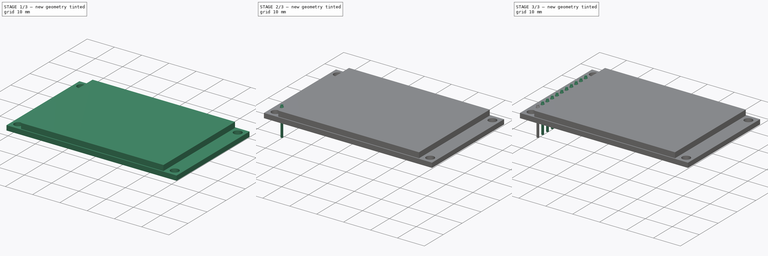
[diagram: build sequence overview — one tinted view per stage of 3, left to right]
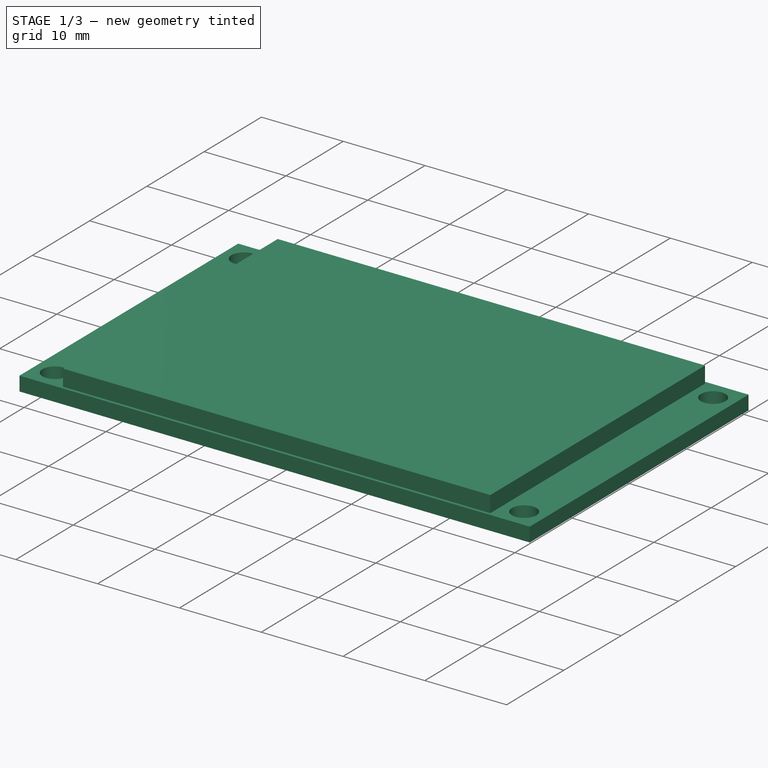
[diagram: stage 1 of 3 — iso view after this stage's code; geometry added in this stage tinted green]
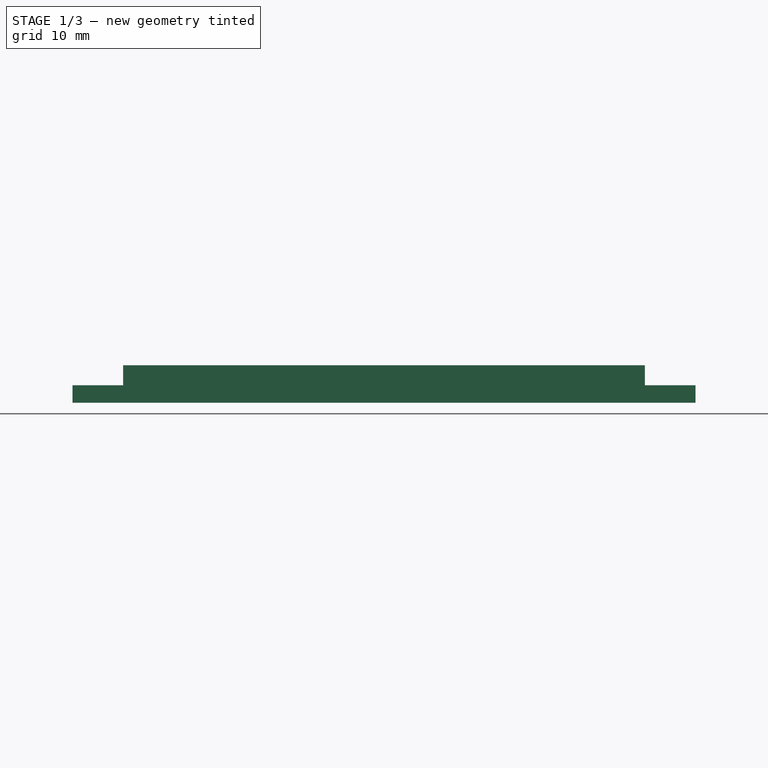
[diagram: stage 1 of 3 — front view after this stage's code; geometry added in this stage tinted green]
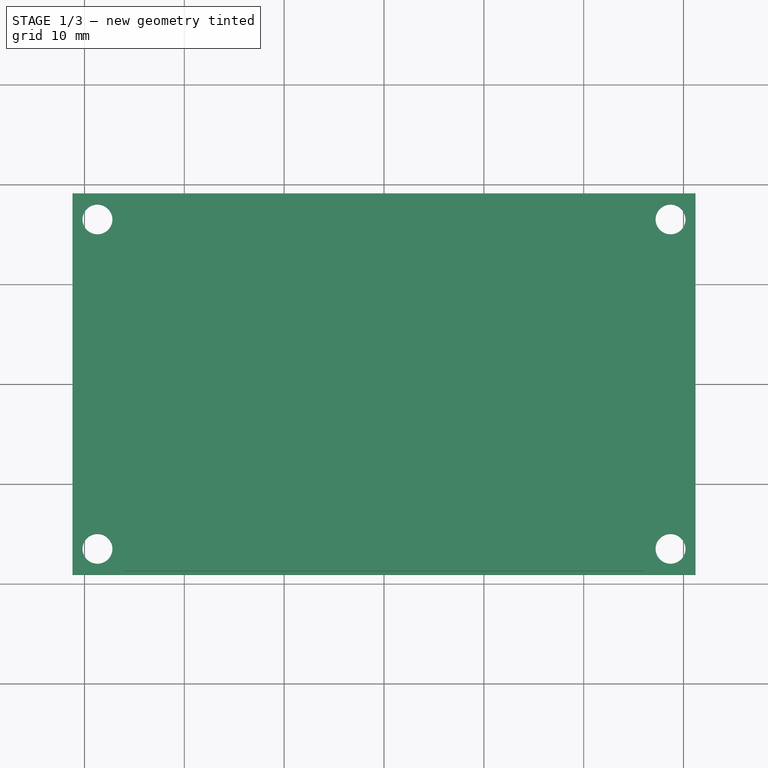
[diagram: stage 1 of 3 — top view after this stage's code; geometry added in this stage tinted green]
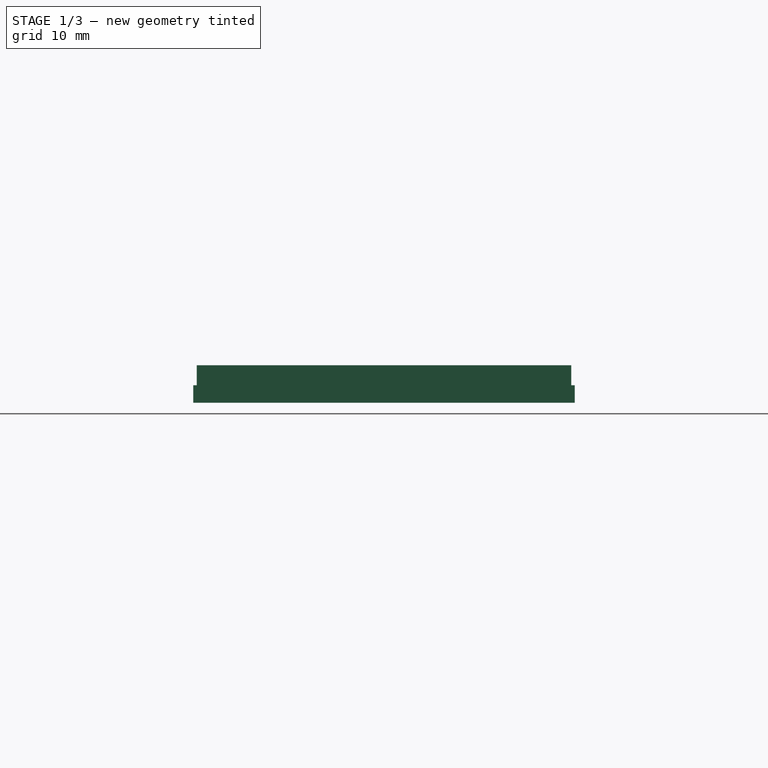
[diagram: stage 1 of 3 — right view after this stage's code; geometry added in this stage tinted green]
FCSTD DOCUMENT  (FreeCAD 1.0R39109 (Git))
Label: screen_il9225
License: All rights reserved
LicenseURL: http://en.wikipedia.org/wiki/All_rights_reserved
objects: Sketcher::SketchObject×6, PartDesign::Pad×4, PartDesign::Line×1, PartDesign::Plane×1, PartDesign::Revolution×1, PartDesign::LinearPattern×1, PartDesign::Body×1
note: 32 computed .brp shape members not serialized (recipe doc carries the construction recipe); baked Part::Feature solids carry a one-line shape summary decoded from their .brp

FEATURE [Sketcher::SketchObject] Sketch
  ArcFitTolerance = 1e-06
  AttachmentSupport = -> [XY_Plane]
  FullyConstrained = true
  MakeInternals = false
  MapMode = 5
  sketch-geometry (9):
    g0: LineSegment StartX=-31.2 StartY=19.1 StartZ=0 EndX=-31.2 EndY=-19.1 EndZ=0
    g1: LineSegment StartX=-31.2 StartY=-19.1 StartZ=0 EndX=31.2 EndY=-19.1 EndZ=0
    g2: LineSegment StartX=31.2 StartY=-19.1 StartZ=0 EndX=31.2 EndY=19.1 EndZ=0
    g3: LineSegment StartX=31.2 StartY=19.1 StartZ=0 EndX=-31.2 EndY=19.1 EndZ=0
    g4: GeomPoint [constr] X=0 Y=0 Z=0
    g5: Circle CenterX=-28.7 CenterY=16.5 CenterZ=0 NormalX=0 NormalY=0 NormalZ=1 AngleXU=0 Radius=1.5
    g6: Circle CenterX=-28.7 CenterY=-16.5 CenterZ=0 NormalX=0 NormalY=0 NormalZ=1 AngleXU=0 Radius=1.5
    g7: Circle CenterX=28.7 CenterY=-16.5 CenterZ=0 NormalX=0 NormalY=0 NormalZ=1 AngleXU=0 Radius=1.5
    g8: Circle CenterX=28.7 CenterY=16.5 CenterZ=0 NormalX=0 NormalY=0 NormalZ=1 AngleXU=0 Radius=1.5
  constraints (22):
    c: Coincident(g0,g1)
    c: Coincident(g1,g2)
    c: Coincident(g2,g3)
    c: Coincident(g3,g0)
    c: Vertical(g0)
    c: Vertical(g2)
    c: Horizontal(g1)
    c: Horizontal(g3)
    c: Symmetric(g2,g0,g4)
    c: Coincident(g4,g-1)
    c: DistanceX(g3,g3) = 62.4
    c: DistanceY(g2,g2) = 38.2
    c: Vertical(g6,g5)
    c: Horizontal(g8,g5)
    c: Equal(g5,g8)
    c: Equal(g8,g6)
    c: Equal(g6,g7)
    c: Radius(g7) = 1.5
    c: DistanceY(g7,g8) = 33
    c: Symmetric(g8,g7,g-1)
    c: Symmetric(g7,g6,g-2)
    c: DistanceX(g6,g7) = 57.4
FEATURE [PartDesign::Pad] Pad  label="PCBPad"
  Direction = (0,0,1)
  Length = 1.75
  Length2 = 10
  Profile = -> Sketch
  ReferenceAxis = -> Sketch [N_Axis]
  Refine = true
  Suppressed = false
  Type = 0
FEATURE [Sketcher::SketchObject] Sketch001
  ArcFitTolerance = 1e-06
  AttachmentSupport = -> [Pad]
  FullyConstrained = true
  MakeInternals = false
  MapMode = 5
  Placement = pos=(0,0,1.75) rot=(0,0,1;0rad)
  sketch-geometry (5):
    g0: LineSegment StartX=-26.125 StartY=18.75 StartZ=0 EndX=-26.125 EndY=-18.75 EndZ=0
    g1: LineSegment StartX=-26.125 StartY=-18.75 StartZ=0 EndX=26.125 EndY=-18.75 EndZ=0
    g2: LineSegment StartX=26.125 StartY=-18.75 StartZ=0 EndX=26.125 EndY=18.75 EndZ=0
    g3: LineSegment StartX=26.125 StartY=18.75 StartZ=0 EndX=-26.125 EndY=18.75 EndZ=0
    g4: GeomPoint [constr] X=0 Y=0 Z=0
  constraints (12):
    c: Coincident(g0,g1)
    c: Coincident(g1,g2)
    c: Coincident(g2,g3)
    c: Coincident(g3,g0)
    c: Vertical(g0)
    c: Vertical(g2)
    c: Horizontal(g1)
    c: Horizontal(g3)
    c: Symmetric(g2,g0,g4)
    c: Coincident(g4,g-1)
    c: DistanceX(g3,g3) = 52.25
    c: DistanceY(g2,g2) = 37.5
FEATURE [PartDesign::Pad] Pad001  label="ScreenPad"
  BaseFeature = -> Pad
  Direction = (0,0,1)
  Length = 2
  Length2 = 10
  Profile = -> Sketch001
  ReferenceAxis = -> Sketch001 [N_Axis]
  Refine = true
  Suppressed = false
  Type = 0
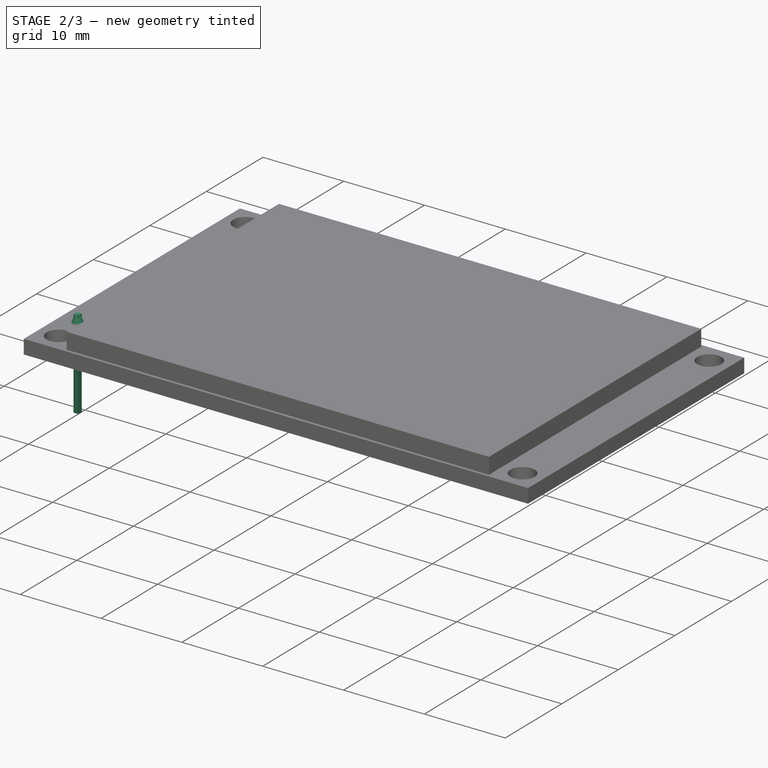
[diagram: stage 2 of 3 — iso view after this stage's code; geometry added in this stage tinted green]
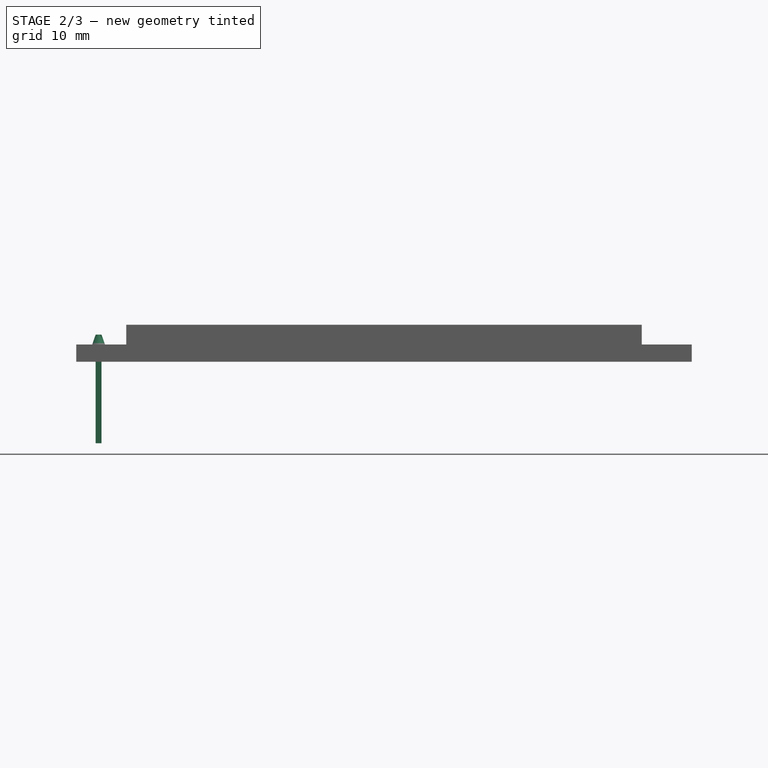
[diagram: stage 2 of 3 — front view after this stage's code; geometry added in this stage tinted green]
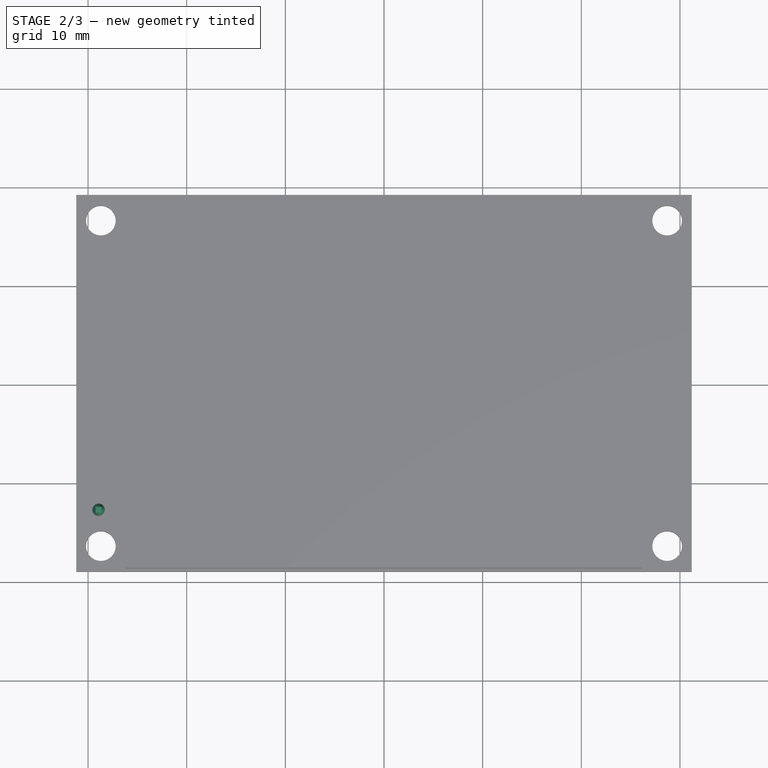
[diagram: stage 2 of 3 — top view after this stage's code; geometry added in this stage tinted green]
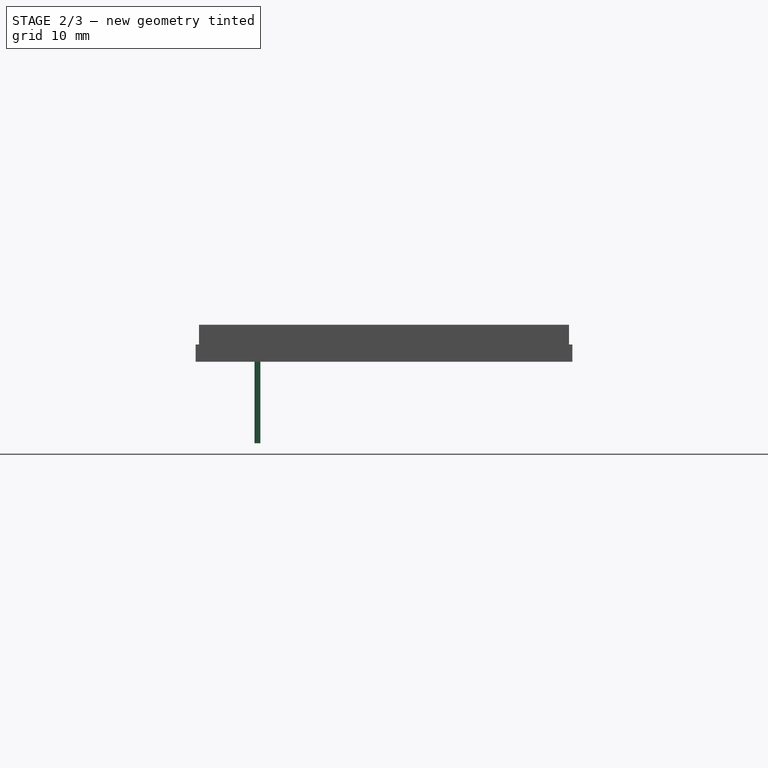
[diagram: stage 2 of 3 — right view after this stage's code; geometry added in this stage tinted green]
FEATURE [Sketcher::SketchObject] Sketch002
  ArcFitTolerance = 1e-06
  AttachmentSupport = -> [Pad001]
  ExternalGeometry = -> [Pad001]
  FullyConstrained = true
  MakeInternals = false
  MapMode = 5
  Placement = pos=(0,0,1.75) rot=(0,0,1;0rad)
  sketch-geometry (10):
    g0: LineSegment [constr] StartX=-30.2 StartY=-11.56 StartZ=0 EndX=-30.2 EndY=-14.1 EndZ=0
    g1: LineSegment [constr] StartX=-30.2 StartY=-14.1 StartZ=0 EndX=-27.66 EndY=-14.1 EndZ=0
    g2: LineSegment [constr] StartX=-27.66 StartY=-14.1 StartZ=0 EndX=-27.66 EndY=-11.56 EndZ=0
    g3: LineSegment [constr] StartX=-27.66 StartY=-11.56 StartZ=0 EndX=-30.2 EndY=-11.56 EndZ=0
    g4: GeomPoint [constr] X=-28.93 Y=-12.83 Z=0
    g5: LineSegment StartX=-29.23 StartY=-12.53 StartZ=0 EndX=-29.23 EndY=-13.13 EndZ=0
    g6: LineSegment StartX=-29.23 StartY=-13.13 StartZ=0 EndX=-28.63 EndY=-13.13 EndZ=0
    g7: LineSegment StartX=-28.63 StartY=-13.13 StartZ=0 EndX=-28.63 EndY=-12.53 EndZ=0
    g8: LineSegment StartX=-28.63 StartY=-12.53 StartZ=0 EndX=-29.23 EndY=-12.53 EndZ=0
    g9: GeomPoint [constr] X=-28.93 Y=-12.83 Z=0
  constraints (25):
    c: Coincident(g0,g1)
    c: Coincident(g1,g2)
    c: Coincident(g2,g3)
    c: Coincident(g3,g0)
    c: Vertical(g0)
    c: Vertical(g2)
    c: Horizontal(g1)
    c: Horizontal(g3)
    c: Symmetric(g2,g0,g4)
    c: Equal(g2,g3)
    c: DistanceX(g3,g3) = 2.54
    c: Coincident(g5,g6)
    c: Coincident(g6,g7)
    c: Coincident(g7,g8)
    c: Coincident(g8,g5)
    c: Vertical(g5)
    c: Vertical(g7)
    c: Horizontal(g6)
    c: Horizontal(g8)
    c: Symmetric(g7,g5,g9)
    c: Coincident(g9,g4)
    c: Equal(g7,g8)
    c: DistanceY(g7,g7) = 0.6
    c: DistanceX(g-3,g0) = 1
    c: DistanceY(g-3,g1) = 5
FEATURE [PartDesign::Pad] Pad002  label="ConnectorPad"
  BaseFeature = -> Pad001
  Direction = (0,0,1)
  Length = 1
  Length2 = 10
  Profile = -> Sketch002
  ReferenceAxis = -> Sketch002 [N_Axis]
  Refine = true
  Suppressed = false
  Type = 4
FEATURE [Sketcher::SketchObject] Sketch003
  ArcFitTolerance = 1e-06
  AttachmentSupport = -> [Pad002]
  ExternalGeometry = -> [Pad002]
  FullyConstrained = true
  MakeInternals = false
  MapMode = 5
  Placement = pos=(0,0,2.75) rot=(0,0,1;0rad)
  sketch-geometry (4):
    g0: Circle CenterX=-28.93 CenterY=-12.83 CenterZ=0 NormalX=0 NormalY=0 NormalZ=1 AngleXU=0 Radius=0.3
    g1: GeomPoint X=-28.93 Y=-12.53 Z=0
    g2: GeomPoint X=-28.63 Y=-12.83 Z=0
    g3: GeomPoint X=-28.93 Y=-12.83 Z=0
  constraints (6):
    c: Symmetric(g-4,g-4,g1)
    c: Symmetric(g-3,g-3,g2)
    c: Horizontal(g0,g2)
    c: Vertical(g0,g1)
    c: Tangent(g-3,g0)
    c: Coincident(g3,g0)
FEATURE [PartDesign::Line] DatumLine  label="SolderRevLine"
  AttacherType = Attacher::AttachEngineLine
  AttachmentSupport = -> [Sketch003]
  Length = 20
  MapMode = 19
  Placement = pos=(-28.93,-12.83,2.75) rot=(0,0,1;0rad)
  ResizeMode = 0
FEATURE [PartDesign::Plane] DatumPlane  label="SolderRevPlane"
  AttachmentSupport = -> [XZ_Plane,Sketch003]
  Length = 73.5714
  MapMode = 53
  Placement = pos=(0,-12.83,-2.8e-15) rot=(1,0,0;1.5708rad)
  ResizeMode = 0
  Width = 61.1714
FEATURE [Sketcher::SketchObject] Sketch004
  ArcFitTolerance = 1e-06
  AttachmentSupport = -> [DatumPlane]
  ExternalGeometry = -> [Sketch003,Pad002]
  FullyConstrained = true
  MakeInternals = false
  MapMode = 5
  Placement = pos=(0,-12.83,-2.8e-15) rot=(1,0,0;1.5708rad)
  sketch-geometry (3):
    g0: LineSegment StartX=-28.63 StartY=2.75 StartZ=0 EndX=-28.28 EndY=1.75 EndZ=0
    g1: LineSegment StartX=-28.63 StartY=2.75 StartZ=0 EndX=-28.63 EndY=1.75 EndZ=0
    g2: LineSegment StartX=-28.63 StartY=1.75 StartZ=0 EndX=-28.28 EndY=1.75 EndZ=0
  constraints (8):
    c: PointOnObject(g0,g-4)
    c: Coincident(g-5,g0)
    c: Coincident(g1,g0)
    c: Coincident(g2,g1)
    c: Coincident(g2,g0)
    c: Horizontal(g2)
    c: Vertical(g1)
    c: DistanceX(g2,g2) = 0.35
FEATURE [PartDesign::Revolution] Revolution  label="SolderRevolution"
  Angle = 360
  Angle2 = 60
  Axis = (0,0,1)
  Base = (-28.93,-12.83,2.75)
  BaseFeature = -> Pad002
  Profile = -> Sketch004
  ReferenceAxis = -> DatumLine
  Refine = true
  Suppressed = false
  Type = 0
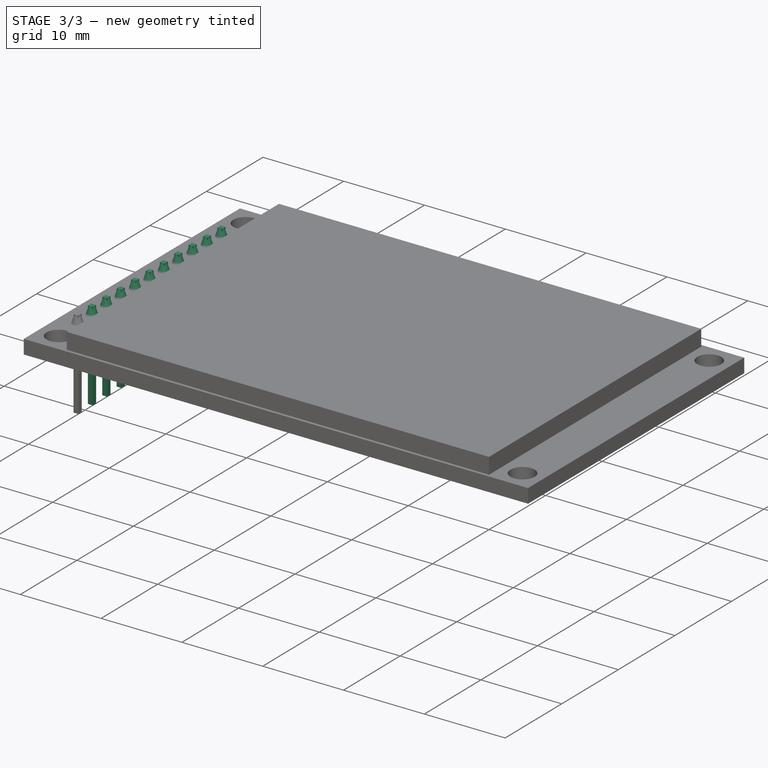
[diagram: stage 3 of 3 — iso view after this stage's code; geometry added in this stage tinted green]
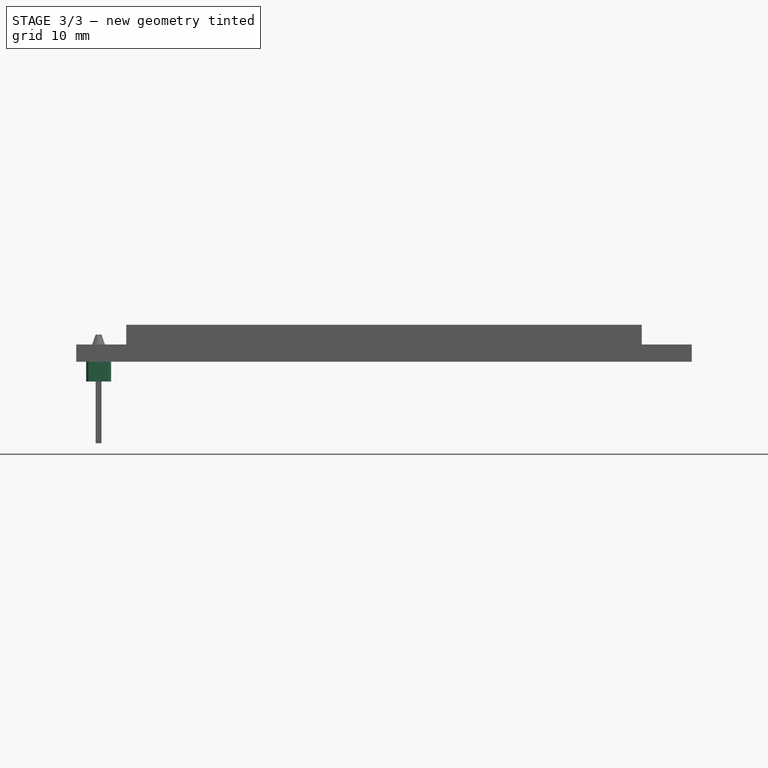
[diagram: stage 3 of 3 — front view after this stage's code; geometry added in this stage tinted green]
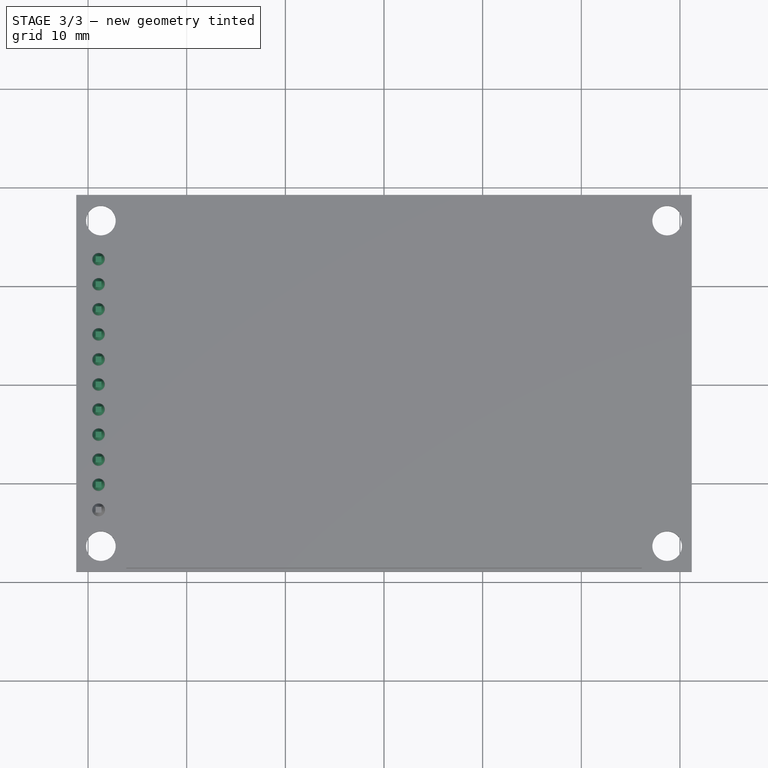
[diagram: stage 3 of 3 — top view after this stage's code; geometry added in this stage tinted green]
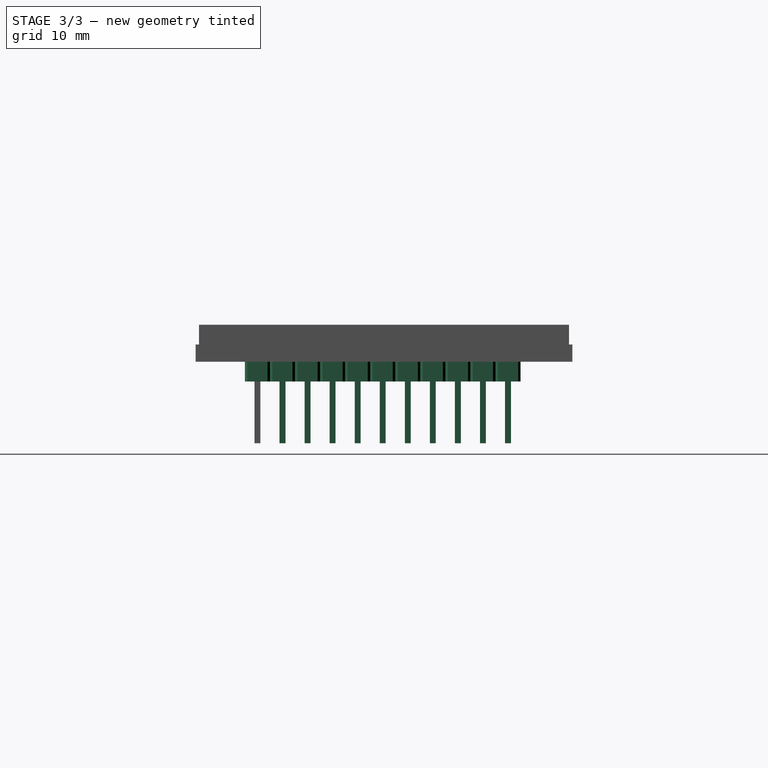
[diagram: stage 3 of 3 — right view after this stage's code; geometry added in this stage tinted green]
FEATURE [Sketcher::SketchObject] Sketch005
  ArcFitTolerance = 1e-06
  AttachmentSupport = -> [Revolution]
  ExternalGeometry = -> [Revolution]
  FullyConstrained = true
  MakeInternals = false
  MapMode = 5
  Placement = pos=(0,0,0) rot=(1,0,0;3.14159rad)
  sketch-geometry (15):
    g0: GeomPoint X=-28.93 Y=13.13 Z=0
    g1: GeomPoint X=-28.63 Y=12.83 Z=0
    g2: LineSegment [constr] StartX=-30.2 StartY=14.1 StartZ=0 EndX=-30.2 EndY=11.56 EndZ=0
    g3: LineSegment [constr] StartX=-30.2 StartY=11.56 StartZ=0 EndX=-27.66 EndY=11.56 EndZ=0
    g4: LineSegment [constr] StartX=-27.66 StartY=11.56 StartZ=0 EndX=-27.66 EndY=14.1 EndZ=0
    g5: LineSegment [constr] StartX=-27.66 StartY=14.1 StartZ=0 EndX=-30.2 EndY=14.1 EndZ=0
    g6: GeomPoint [constr] X=-28.93 Y=12.83 Z=0
    g7: LineSegment StartX=-30.2 StartY=13.85 StartZ=0 EndX=-30.2 EndY=11.81 EndZ=0
    g8: LineSegment StartX=-30.2 StartY=11.81 StartZ=0 EndX=-29.95 EndY=11.56 EndZ=0
    g9: LineSegment StartX=-29.95 StartY=11.56 StartZ=0 EndX=-27.91 EndY=11.56 EndZ=0
    g10: LineSegment StartX=-27.91 StartY=11.56 StartZ=0 EndX=-27.66 EndY=11.81 EndZ=0
    g11: LineSegment StartX=-27.66 StartY=11.81 StartZ=0 EndX=-27.66 EndY=13.85 EndZ=0
    g12: LineSegment StartX=-27.66 StartY=13.85 StartZ=0 EndX=-27.91 EndY=14.1 EndZ=0
    g13: LineSegment StartX=-27.91 StartY=14.1 StartZ=0 EndX=-29.95 EndY=14.1 EndZ=0
    g14: LineSegment StartX=-29.95 StartY=14.1 StartZ=0 EndX=-30.2 EndY=13.85 EndZ=0
  constraints (38):
    c: Symmetric(g-3,g-3,g0)
    c: Symmetric(g-4,g-4,g1)
    c: Coincident(g2,g3)
    c: Coincident(g3,g4)
    c: Coincident(g4,g5)
    c: Coincident(g5,g2)
    c: Vertical(g2)
    c: Vertical(g4)
    c: Horizontal(g3)
    c: Horizontal(g5)
    c: Symmetric(g4,g2,g6)
    c: Equal(g4,g5)
    c: DistanceY(g4,g4) = 2.54
    c: Horizontal(g6,g1)
    c: Vertical(g6,g0)
    c: PointOnObject(g7,g2)
    c: PointOnObject(g7,g2)
    c: Coincident(g7,g8)
    c: PointOnObject(g8,g3)
    c: Coincident(g8,g9)
    c: PointOnObject(g9,g3)
    c: Coincident(g9,g10)
    c: Coincident(g10,g11)
    c: PointOnObject(g11,g4)
    c: Coincident(g11,g12)
    c: PointOnObject(g12,g5)
    c: Coincident(g12,g13)
    c: PointOnObject(g13,g5)
    c: Coincident(g13,g14)
    c: Coincident(g14,g7)
    c: Symmetric(g7,g10,g6)
    c: Equal(g11,g7)
    c: Equal(g7,g13)
    c: Equal(g13,g9)
    c: Equal(g8,g10)
    c: Equal(g10,g12)
    c: Angle(g10,g9) = 2.35619
    c: DistanceY(g3,g10) = 0.25
FEATURE [PartDesign::Pad] Pad003  label="ConnectorBasePad"
  BaseFeature = -> Revolution
  Direction = (0,0,-1)
  Length = 2
  Length2 = 10
  Profile = -> Sketch005
  ReferenceAxis = -> Sketch005 [N_Axis]
  Refine = true
  Suppressed = false
  Type = 0
FEATURE [PartDesign::LinearPattern] LinearPattern  label="ConnectorPatterns"
  BaseFeature = -> Pad003
  Direction = -> Sketch005 [V_Axis]
  Length = 25.4
  Mode = 1
  Occurrences = 11
  Offset = 2.54
  Originals = -> [Pad003,Revolution,Pad002]
  Refine = true
  Reversed = true
  Suppressed = false
  TransformMode = 0
FEATURE [PartDesign::Body] Body  label="screen_il9225"
  AllowCompound = false
  Group = -> [Sketch,Pad,Sketch001,Pad001,Sketch002,Pad002,Sketch003,DatumLine,DatumPlane,Sketch004,Revolution,Sketch005,Pad003,LinearPattern]
  Origin = -> Origin
  Tip = -> LinearPattern
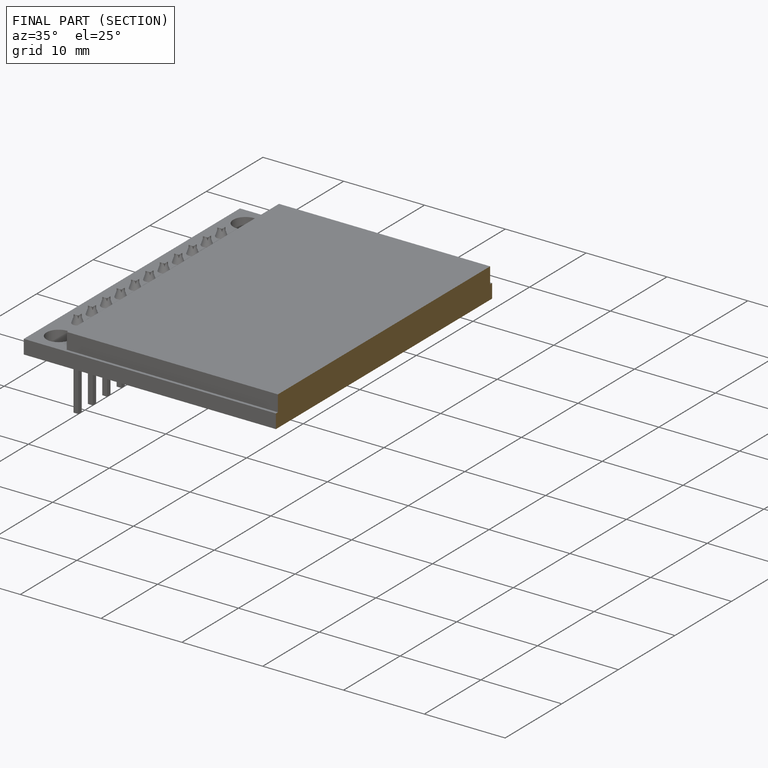
[diagram: finished part — half-section view (interior)]
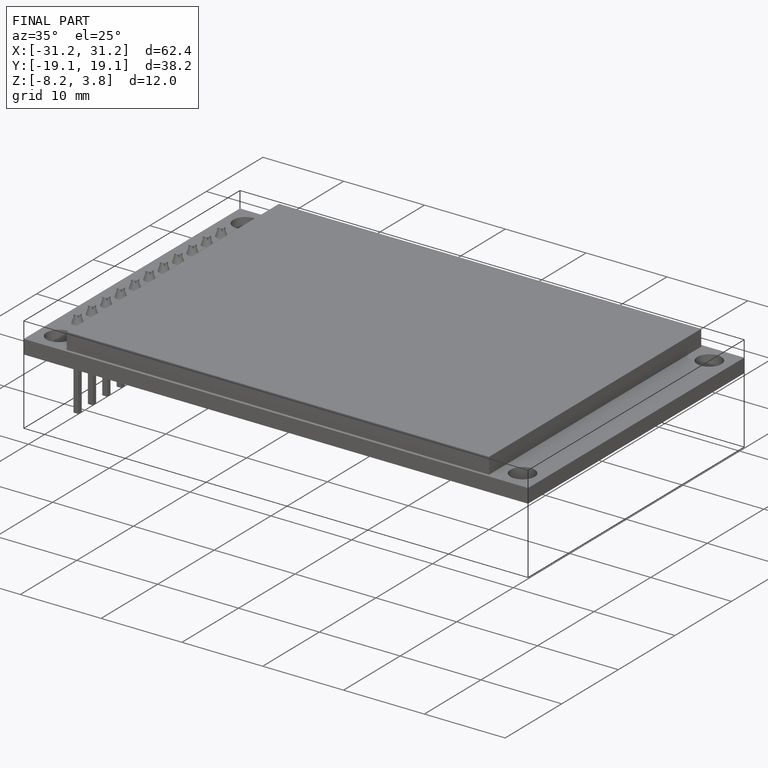
[diagram: finished part — iso view with bounding-box wireframe]
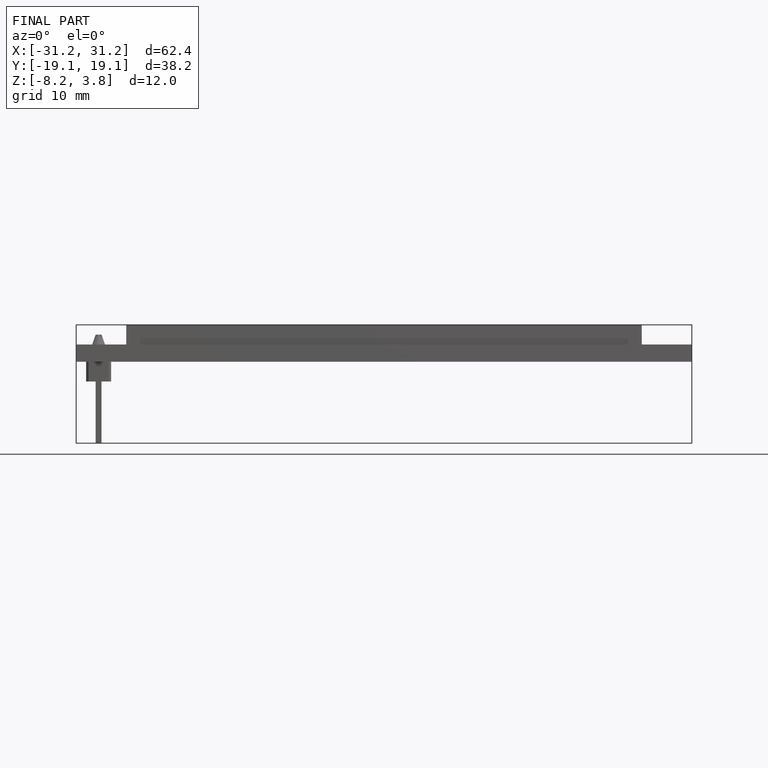
[diagram: finished part — front view with bounding-box wireframe]
